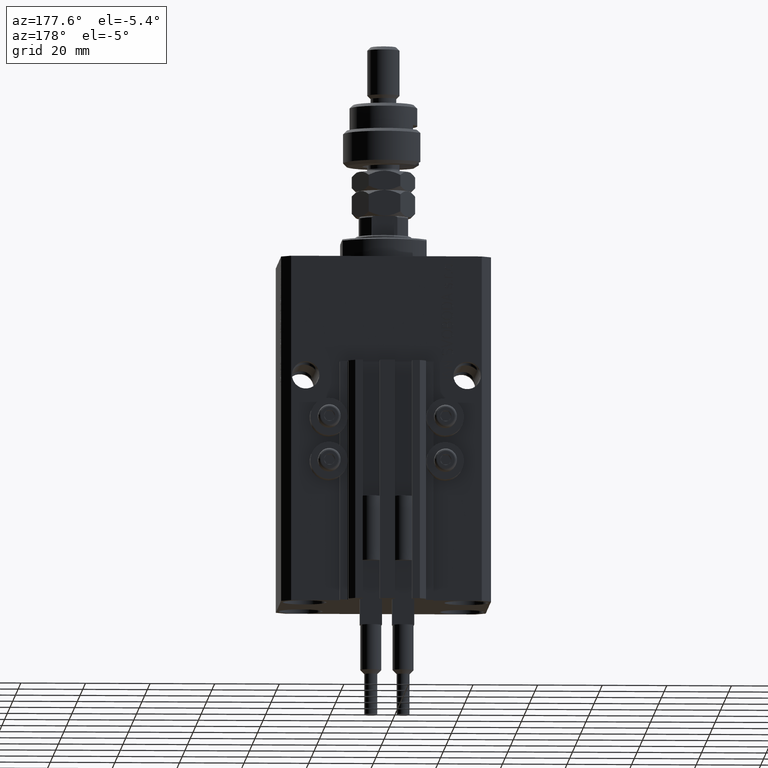
[diagram: clean part render]
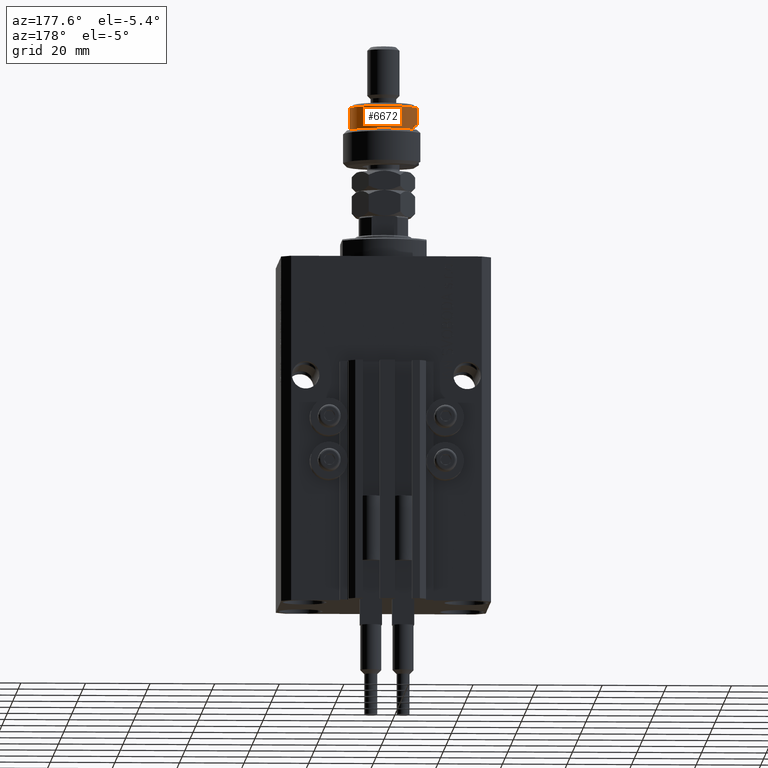
[diagram: same view with one face highlighted and labeled with its STEP entity id]
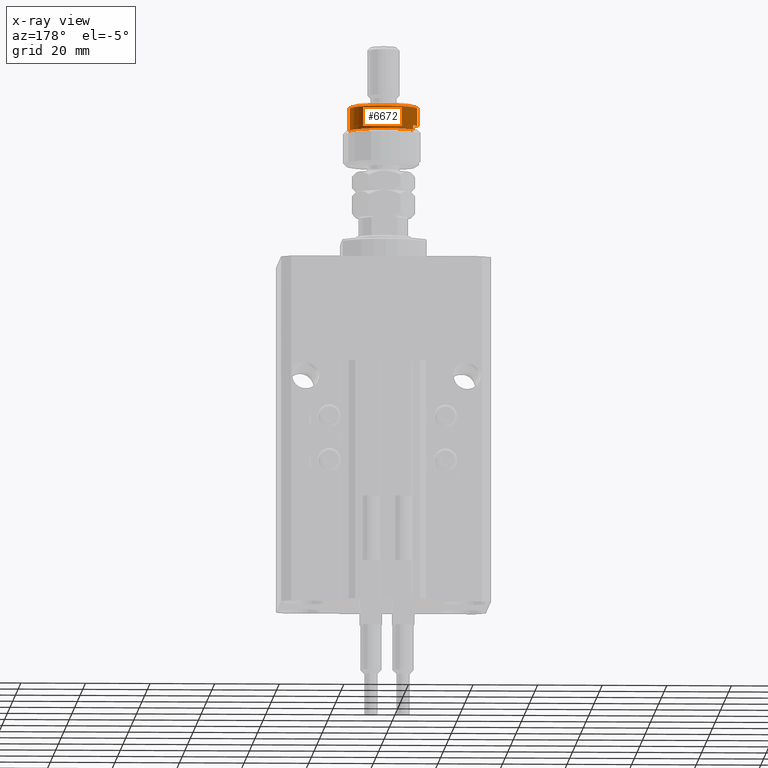
[diagram: x-ray of the same camera — body ghosted, the highlighted face saturated]
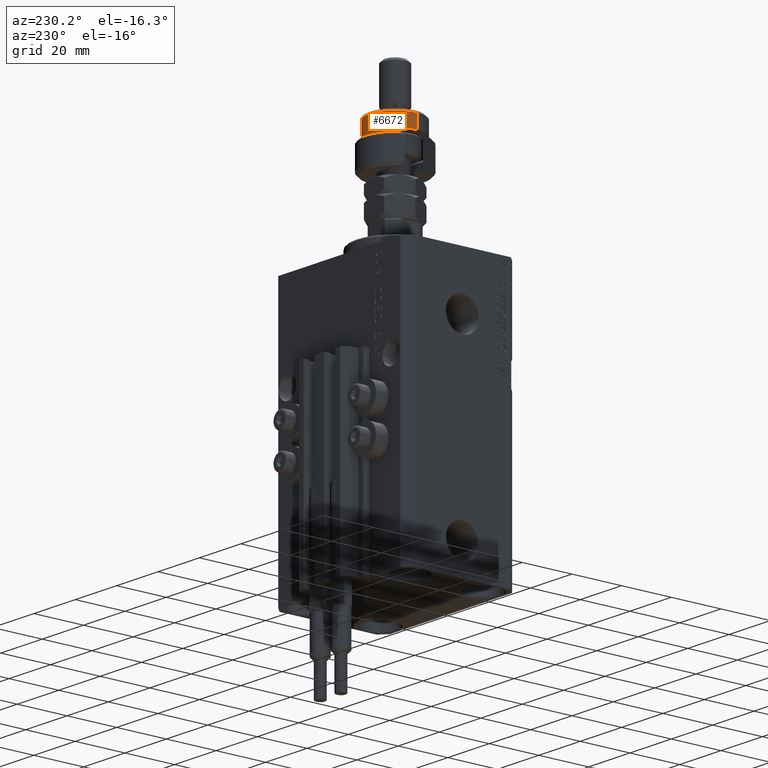
[diagram: same view with one face highlighted and labeled with its STEP entity id]
A machine part, auxiliary view. The second image highlights one B-rep face of the part: STEP entity #6672.
The next image is the same camera in x-ray: the body ghosted, the highlighted face saturated — about 0% of this face is hidden behind the body in this view.
A second angle (auxiliary view) of the same face is appended — the face is thin or edge-on in the first view.
In plain terms, the highlighted cylindrical surface (edge-blend (fillet) strip) has radius 10.5 mm, axis along (-0, -0, -1).
Its self-contained STEP definition (entity closure, byte-faithful):
#387 = CARTESIAN_POINT ( 'NONE',  ( -10.50000000000000000, 0.000000000000000000, 12.50000000000000000 ) ) ;
#1736 = DIRECTION ( 'NONE',  ( -0.000000000000000000, -0.000000000000000000, -1.000000000000000000 ) ) ;
#2638 = DIRECTION ( 'NONE',  ( 0.000000000000000000, 0.000000000000000000, -1.000000000000000000 ) ) ;
#3336 = DIRECTION ( 'NONE',  ( 0.000000000000000000, 0.000000000000000000, 1.000000000000000000 ) ) ;
#4005 = CARTESIAN_POINT ( 'NONE',  ( -8.944271909999159220, 5.500000000000000000, 12.50000000000000000 ) ) ;
#4043 = EDGE_CURVE ( 'NONE', #25649, #18962, #27748, .T. ) ;
#4434 = EDGE_CURVE ( 'NONE', #25649, #38223, #5494, .T. ) ;
#5494 = CIRCLE ( 'NONE', #50587, 10.50000000000000000 ) ;
#6672 = ADVANCED_FACE ( 'NONE', ( #49590 ), #14405, .T. ) ;
#6710 = EDGE_CURVE ( 'NONE', #20991, #26893, #39056, .T. ) ;
#7195 = DIRECTION ( 'NONE',  ( -1.000000000000000000, 0.000000000000000000, 0.000000000000000000 ) ) ;
#8711 = VECTOR ( 'NONE', #3336, 1000.000000000000000 ) ;
#9649 = DIRECTION ( 'NONE',  ( 1.000000000000000000, 0.000000000000000000, 0.000000000000000000 ) ) ;
#10270 = CARTESIAN_POINT ( 'NONE',  ( 10.50000000000000000, 1.285879139104720831E-15, 11.00000000000000000 ) ) ;
#11763 = VERTEX_POINT ( 'NONE', #10270 ) ;
#13082 = ORIENTED_EDGE ( 'NONE', *, *, #42805, .T. ) ;
#13119 = ORIENTED_EDGE ( 'NONE', *, *, #6710, .T. ) ;
#13511 = CARTESIAN_POINT ( 'NONE',  ( 0.000000000000000000, 0.000000000000000000, 11.00000000000000000 ) ) ;
#14019 = DIRECTION ( 'NONE',  ( 0.000000000000000000, 0.000000000000000000, 1.000000000000000000 ) ) ;
#14405 = CYLINDRICAL_SURFACE ( 'NONE', #42443, 10.50000000000000000 ) ;
#14567 = CARTESIAN_POINT ( 'NONE',  ( -8.944271909999159220, 5.500000000000000000, 11.00000000000000000 ) ) ;
#15318 = VECTOR ( 'NONE', #23881, 1000.000000000000000 ) ;
#15539 = ORIENTED_EDGE ( 'NONE', *, *, #4043, .F. ) ;
#16642 = CARTESIAN_POINT ( 'NONE',  ( 10.50000000000000000, 1.285879139104720831E-15, 19.00000000000000000 ) ) ;
#18962 = VERTEX_POINT ( 'NONE', #387 ) ;
#20991 = VERTEX_POINT ( 'NONE', #14567 ) ;
#21082 = EDGE_LOOP ( 'NONE', ( #36413, #50320, #13082, #13119, #23059, #15539 ) ) ;
#21669 = CARTESIAN_POINT ( 'NONE',  ( 0.000000000000000000, 0.000000000000000000, 17.99999999999999645 ) ) ;
#22824 = CARTESIAN_POINT ( 'NONE',  ( 0.000000000000000000, 0.000000000000000000, 12.50000000000000000 ) ) ;
#23059 = ORIENTED_EDGE ( 'NONE', *, *, #47346, .F. ) ;
#23881 = DIRECTION ( 'NONE',  ( -0.000000000000000000, -0.000000000000000000, -1.000000000000000000 ) ) ;
#24056 = CARTESIAN_POINT ( 'NONE',  ( 10.50000000000000000, 1.285879139104720831E-15, 17.99999999999999645 ) ) ;
#25649 = VERTEX_POINT ( 'NONE', #26619 ) ;
#26563 = EDGE_CURVE ( 'NONE', #38223, #11763, #28482, .T. ) ;
#26619 = CARTESIAN_POINT ( 'NONE',  ( -10.50000000000000000, 0.000000000000000000, 17.99999999999999645 ) ) ;
#26893 = VERTEX_POINT ( 'NONE', #4005 ) ;
#27748 = LINE ( 'NONE', #43408, #15318 ) ;
#28482 = LINE ( 'NONE', #16642, #32948 ) ;
#29646 = DIRECTION ( 'NONE',  ( 1.000000000000000000, 0.000000000000000000, 0.000000000000000000 ) ) ;
#30085 = CARTESIAN_POINT ( 'NONE',  ( 0.000000000000000000, 0.000000000000000000, 19.00000000000000000 ) ) ;
#31512 = CIRCLE ( 'NONE', #43780, 10.50000000000000000 ) ;
#32948 = VECTOR ( 'NONE', #1736, 1000.000000000000000 ) ;
#34688 = CARTESIAN_POINT ( 'NONE',  ( -8.944271909999159220, 5.500000000000000000, 19.00000000000000000 ) ) ;
#34950 = DIRECTION ( 'NONE',  ( -0.000000000000000000, -0.000000000000000000, -1.000000000000000000 ) ) ;
#36413 = ORIENTED_EDGE ( 'NONE', *, *, #4434, .T. ) ;
#38223 = VERTEX_POINT ( 'NONE', #24056 ) ;
#38298 = CIRCLE ( 'NONE', #44874, 10.50000000000000000 ) ;
#39056 = LINE ( 'NONE', #34688, #8711 ) ;
#42087 = DIRECTION ( 'NONE',  ( 0.000000000000000000, 0.000000000000000000, -1.000000000000000000 ) ) ;
#42443 = AXIS2_PLACEMENT_3D ( 'NONE', #30085, #34950, #7195 ) ;
#42805 = EDGE_CURVE ( 'NONE', #11763, #20991, #38298, .T. ) ;
#43408 = CARTESIAN_POINT ( 'NONE',  ( -10.50000000000000000, 0.000000000000000000, 19.00000000000000000 ) ) ;
#43780 = AXIS2_PLACEMENT_3D ( 'NONE', #22824, #42087, #49548 ) ;
#44874 = AXIS2_PLACEMENT_3D ( 'NONE', #13511, #14019, #9649 ) ;
#47346 = EDGE_CURVE ( 'NONE', #18962, #26893, #31512, .T. ) ;
#49548 = DIRECTION ( 'NONE',  ( -1.000000000000000000, 0.000000000000000000, 0.000000000000000000 ) ) ;
#49590 = FACE_OUTER_BOUND ( 'NONE', #21082, .T. ) ;
#50320 = ORIENTED_EDGE ( 'NONE', *, *, #26563, .T. ) ;
#50587 = AXIS2_PLACEMENT_3D ( 'NONE', #21669, #2638, #29646 ) ;